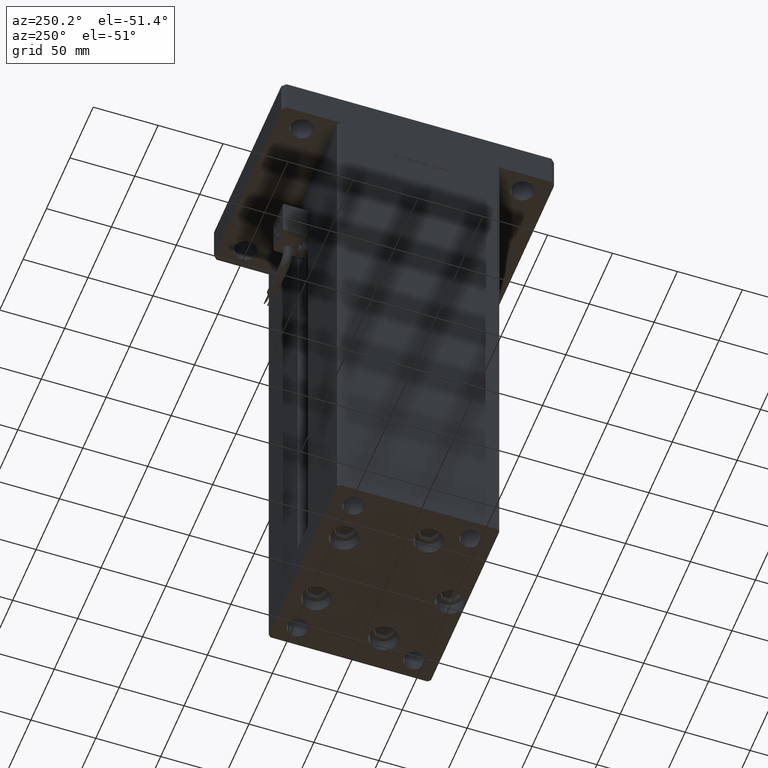
[diagram: clean part render]
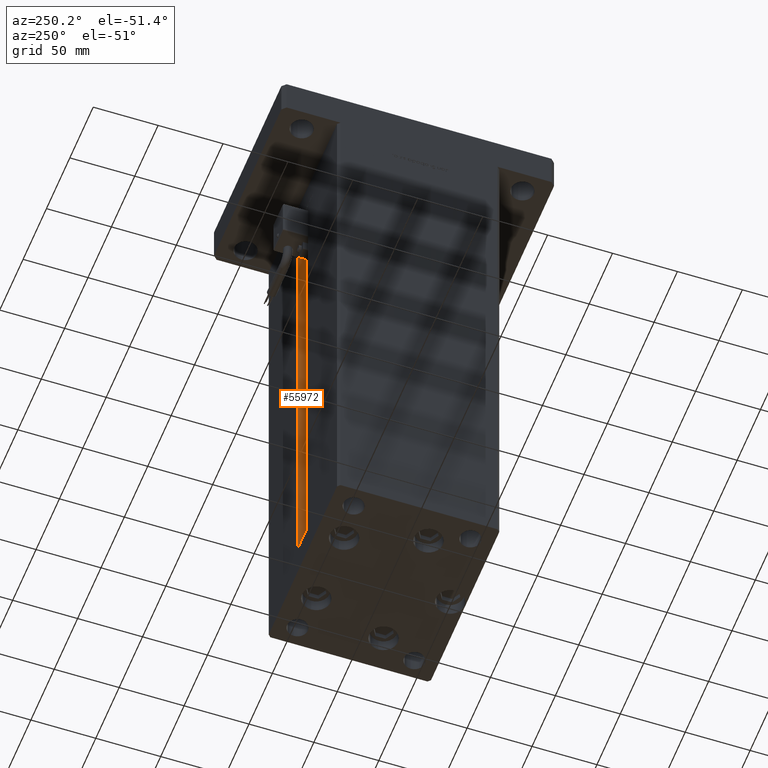
[diagram: same view with one face highlighted and labeled with its STEP entity id]
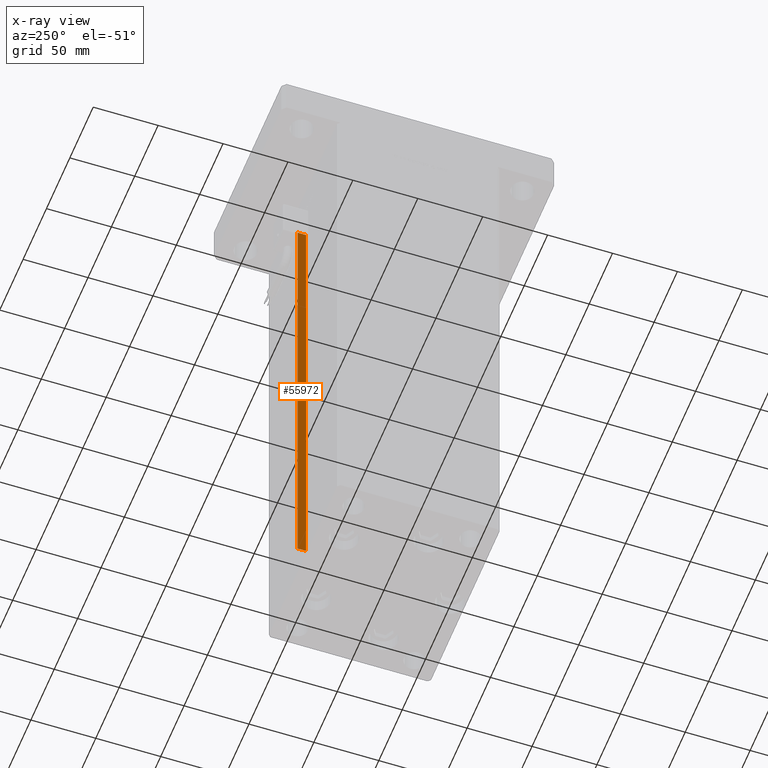
[diagram: x-ray of the same camera — body ghosted, the highlighted face saturated]
A machine part, auxiliary view. The second image highlights one B-rep face of the part: STEP entity #55972.
The next image is the same camera in x-ray: the body ghosted, the highlighted face saturated — about 0% of this face is hidden behind the body in this view.
In plain terms, the highlighted planar face has unit normal (1, 0, 0).
Its self-contained STEP definition (entity closure, byte-faithful):
#185 = ORIENTED_EDGE ( 'NONE', *, *, #44903, .T. ) ;
#692 = ORIENTED_EDGE ( 'NONE', *, *, #6012, .F. ) ;
#908 = CARTESIAN_POINT ( 'NONE',  ( 11.25000000000000178, 55.99999999999999289, 0.000000000000000000 ) ) ;
#1131 = VERTEX_POINT ( 'NONE', #23297 ) ;
#6012 = EDGE_CURVE ( 'NONE', #32880, #35971, #44849, .T. ) ;
#6407 = EDGE_CURVE ( 'NONE', #27217, #1131, #52089, .T. ) ;
#7395 = ORIENTED_EDGE ( 'NONE', *, *, #10586, .F. ) ;
#8809 = VECTOR ( 'NONE', #18965, 1000.000000000000000 ) ;
#9349 = CARTESIAN_POINT ( 'NONE',  ( 11.25000000000000178, 62.49999999999999289, 0.000000000000000000 ) ) ;
#10420 = DIRECTION ( 'NONE',  ( 1.000000000000000000, -0.000000000000000000, 0.000000000000000000 ) ) ;
#10586 = EDGE_CURVE ( 'NONE', #1131, #32880, #13051, .T. ) ;
#13051 = LINE ( 'NONE', #9349, #50534 ) ;
#13157 = DIRECTION ( 'NONE',  ( 0.000000000000000000, 1.000000000000000000, 0.000000000000000000 ) ) ;
#18965 = DIRECTION ( 'NONE',  ( -0.000000000000000000, -1.000000000000000000, 0.000000000000000000 ) ) ;
#21841 = CARTESIAN_POINT ( 'NONE',  ( 11.24999999999999467, 62.49999999999999289, 367.0000000000000000 ) ) ;
#22623 = PLANE ( 'NONE',  #45711 ) ;
#23297 = CARTESIAN_POINT ( 'NONE',  ( 11.25000000000000178, 62.49999999999999289, 0.000000000000000000 ) ) ;
#26895 = DIRECTION ( 'NONE',  ( 0.000000000000000000, 0.000000000000000000, -1.000000000000000000 ) ) ;
#27217 = VERTEX_POINT ( 'NONE', #42892 ) ;
#30379 = DIRECTION ( 'NONE',  ( -0.000000000000000000, -0.000000000000000000, 1.000000000000000000 ) ) ;
#32880 = VERTEX_POINT ( 'NONE', #21841 ) ;
#35018 = CARTESIAN_POINT ( 'NONE',  ( 11.25000000000000178, 55.99999999999999289, 0.000000000000000000 ) ) ;
#35304 = LINE ( 'NONE', #908, #41874 ) ;
#35309 = EDGE_LOOP ( 'NONE', ( #7395, #47957, #185, #692 ) ) ;
#35971 = VERTEX_POINT ( 'NONE', #39242 ) ;
#37186 = DIRECTION ( 'NONE',  ( -0.000000000000000000, -0.000000000000000000, 1.000000000000000000 ) ) ;
#39242 = CARTESIAN_POINT ( 'NONE',  ( 11.25000000000000178, 55.99999999999999289, 367.0000000000000000 ) ) ;
#40257 = CARTESIAN_POINT ( 'NONE',  ( 11.25000000000000178, 55.99999999999999289, 0.000000000000000000 ) ) ;
#40588 = CARTESIAN_POINT ( 'NONE',  ( 11.25000000000000178, 0.000000000000000000, 367.0000000000000000 ) ) ;
#41874 = VECTOR ( 'NONE', #37186, 1000.000000000000000 ) ;
#42892 = CARTESIAN_POINT ( 'NONE',  ( 11.25000000000000178, 55.99999999999999289, 0.000000000000000000 ) ) ;
#44849 = LINE ( 'NONE', #40588, #8809 ) ;
#44903 = EDGE_CURVE ( 'NONE', #27217, #35971, #35304, .T. ) ;
#45110 = VECTOR ( 'NONE', #13157, 1000.000000000000000 ) ;
#45711 = AXIS2_PLACEMENT_3D ( 'NONE', #40257, #10420, #26895 ) ;
#47957 = ORIENTED_EDGE ( 'NONE', *, *, #6407, .F. ) ;
#49644 = FACE_OUTER_BOUND ( 'NONE', #35309, .T. ) ;
#50534 = VECTOR ( 'NONE', #30379, 1000.000000000000000 ) ;
#52089 = LINE ( 'NONE', #35018, #45110 ) ;
#55972 = ADVANCED_FACE ( 'NONE', ( #49644 ), #22623, .F. ) ;